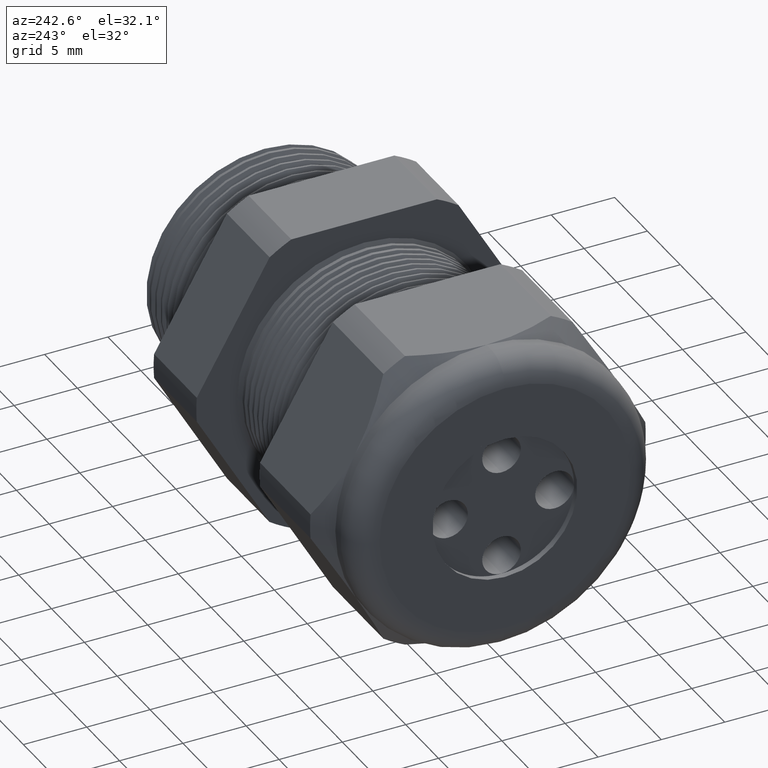
[diagram: clean part render]
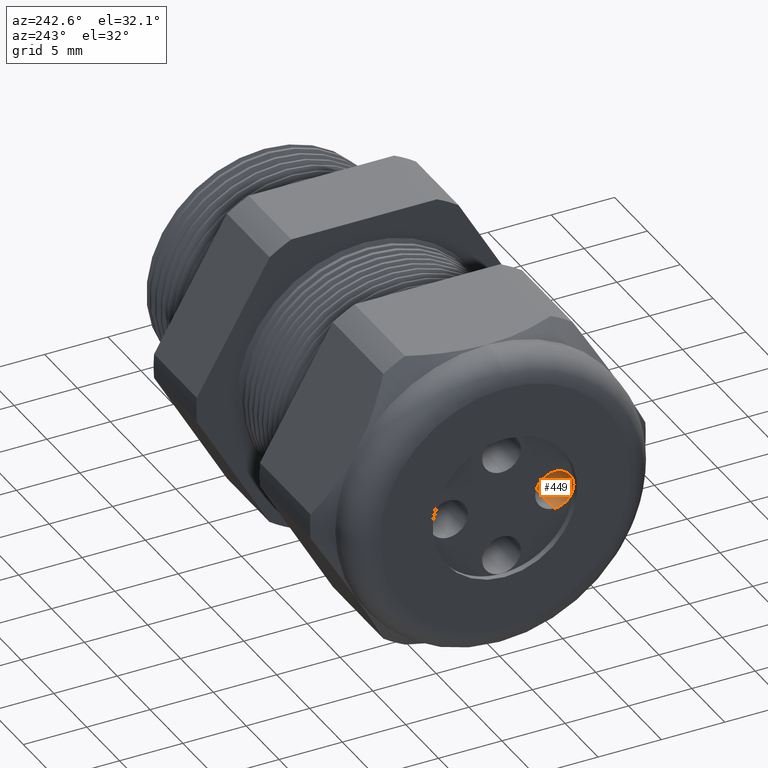
[diagram: same view with one face highlighted and labeled with its STEP entity id]
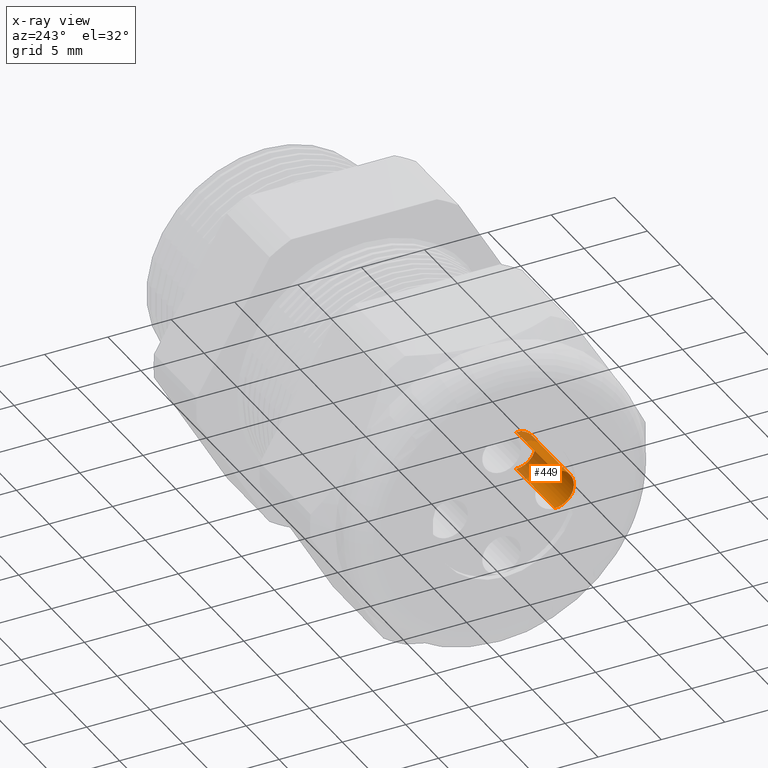
[diagram: x-ray of the same camera — body ghosted, the highlighted face saturated]
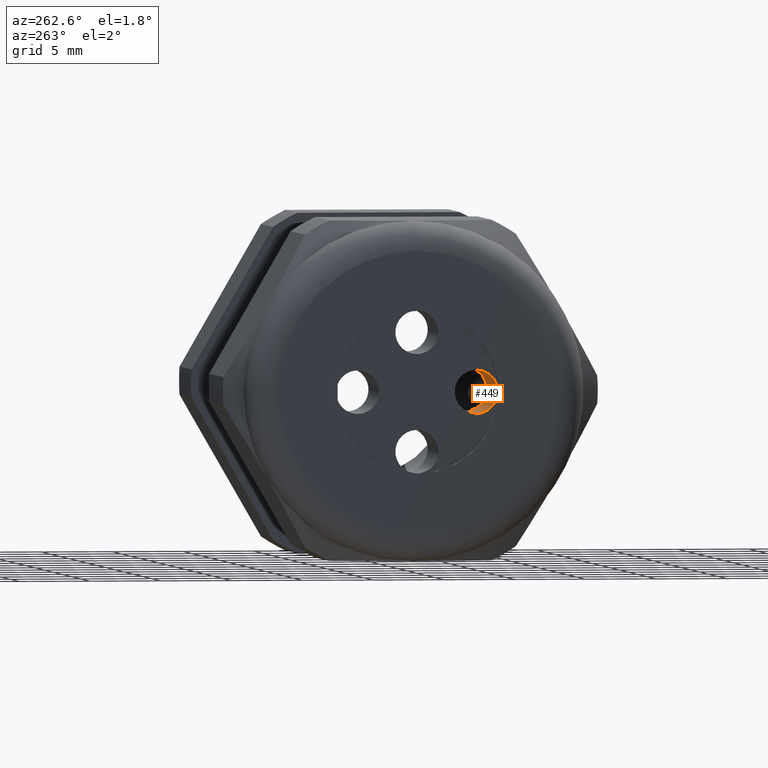
[diagram: same view with one face highlighted and labeled with its STEP entity id]
A machine part, auxiliary view. The second image highlights one B-rep face of the part: STEP entity #449.
The next image is the same camera in x-ray: the body ghosted, the highlighted face saturated — about 22% of this face is hidden behind the body in this view.
A second angle (auxiliary view) of the same face is appended — the face is thin or edge-on in the first view.
In plain terms, the highlighted cylindrical surface (edge-blend (fillet) strip) has radius 1.524 mm, axis along (-1, 0, 0).
Its self-contained STEP definition (entity closure, byte-faithful):
#449 = ADVANCED_FACE ( 'NONE', ( #2618 ), #2617, .F. ) ;
#465 = EDGE_LOOP ( 'NONE', ( #503, #507, #510, #480 ) ) ;
#479 = VERTEX_POINT ( 'NONE', #2623 ) ;
#480 = ORIENTED_EDGE ( 'NONE', *, *, #481, .F. ) ;
#481 = EDGE_CURVE ( 'NONE', #506, #479, #2683, .T. ) ;
#503 = ORIENTED_EDGE ( 'NONE', *, *, #504, .F. ) ;
#504 = EDGE_CURVE ( 'NONE', #505, #506, #2694, .T. ) ;
#505 = VERTEX_POINT ( 'NONE', #2689 ) ;
#506 = VERTEX_POINT ( 'NONE', #2688 ) ;
#507 = ORIENTED_EDGE ( 'NONE', *, *, #508, .T. ) ;
#508 = EDGE_CURVE ( 'NONE', #505, #509, #2687, .T. ) ;
#509 = VERTEX_POINT ( 'NONE', #2749 ) ;
#510 = ORIENTED_EDGE ( 'NONE', *, *, #511, .T. ) ;
#511 = EDGE_CURVE ( 'NONE', #509, #479, #2748, .T. ) ;
#2613 = DIRECTION ( 'NONE',  ( 0.0000000000000000000, 0.0000000000000000000, 1.000000000000000000 ) ) ;
#2614 = DIRECTION ( 'NONE',  ( -1.000000000000000000, 0.0000000000000000000, 0.0000000000000000000 ) ) ;
#2615 = CARTESIAN_POINT ( 'NONE',  ( -1.159999999999999900, -0.1647599999999999900, 5.752567985763818600E-016 ) ) ;
#2616 = AXIS2_PLACEMENT_3D ( 'NONE', #2615, #2614, #2613 ) ;
#2617 = CYLINDRICAL_SURFACE ( 'NONE', #2616, 0.06000000000000001900 ) ;
#2618 = FACE_OUTER_BOUND ( 'NONE', #465, .T. ) ;
#2623 = CARTESIAN_POINT ( 'NONE',  ( -1.389999999999999900, -0.1647599999999999900, 0.06000000000000058800 ) ) ;
#2680 = DIRECTION ( 'NONE',  ( -1.000000000000000000, 0.0000000000000000000, 0.0000000000000000000 ) ) ;
#2681 = VECTOR ( 'NONE', #2680, 39.37007874015748100 ) ;
#2682 = CARTESIAN_POINT ( 'NONE',  ( -1.159999999999999900, -0.1647599999999999900, 0.06000000000000058800 ) ) ;
#2683 = LINE ( 'NONE', #2682, #2681 ) ;
#2684 = DIRECTION ( 'NONE',  ( -1.000000000000000000, 0.0000000000000000000, 0.0000000000000000000 ) ) ;
#2685 = VECTOR ( 'NONE', #2684, 39.37007874015748100 ) ;
#2686 = CARTESIAN_POINT ( 'NONE',  ( -1.159999999999999900, -0.1647599999999999900, -0.05999999999999944300 ) ) ;
#2687 = LINE ( 'NONE', #2686, #2685 ) ;
#2688 = CARTESIAN_POINT ( 'NONE',  ( -1.159999999999999900, -0.1647599999999999900, 0.06000000000000058800 ) ) ;
#2689 = CARTESIAN_POINT ( 'NONE',  ( -1.159999999999999900, -0.1647599999999999900, -0.05999999999999944300 ) ) ;
#2690 = DIRECTION ( 'NONE',  ( 0.0000000000000000000, 1.000000000000000000, -3.491483361109382500E-015 ) ) ;
#2691 = DIRECTION ( 'NONE',  ( -1.000000000000000000, 0.0000000000000000000, 0.0000000000000000000 ) ) ;
#2692 = CARTESIAN_POINT ( 'NONE',  ( -1.159999999999999900, -0.1647599999999999900, 5.752567985763818600E-016 ) ) ;
#2693 = AXIS2_PLACEMENT_3D ( 'NONE', #2692, #2691, #2690 ) ;
#2694 = CIRCLE ( 'NONE', #2693, 0.06000000000000001200 ) ;
#2744 = DIRECTION ( 'NONE',  ( 0.0000000000000000000, 1.000000000000000000, -3.491483361109382500E-015 ) ) ;
#2745 = DIRECTION ( 'NONE',  ( -1.000000000000000000, 0.0000000000000000000, 0.0000000000000000000 ) ) ;
#2746 = CARTESIAN_POINT ( 'NONE',  ( -1.389999999999999900, -0.1647599999999999900, 5.752567985763818600E-016 ) ) ;
#2747 = AXIS2_PLACEMENT_3D ( 'NONE', #2746, #2745, #2744 ) ;
#2748 = CIRCLE ( 'NONE', #2747, 0.06000000000000001200 ) ;
#2749 = CARTESIAN_POINT ( 'NONE',  ( -1.389999999999999900, -0.1647599999999999900, -0.05999999999999944300 ) ) ;